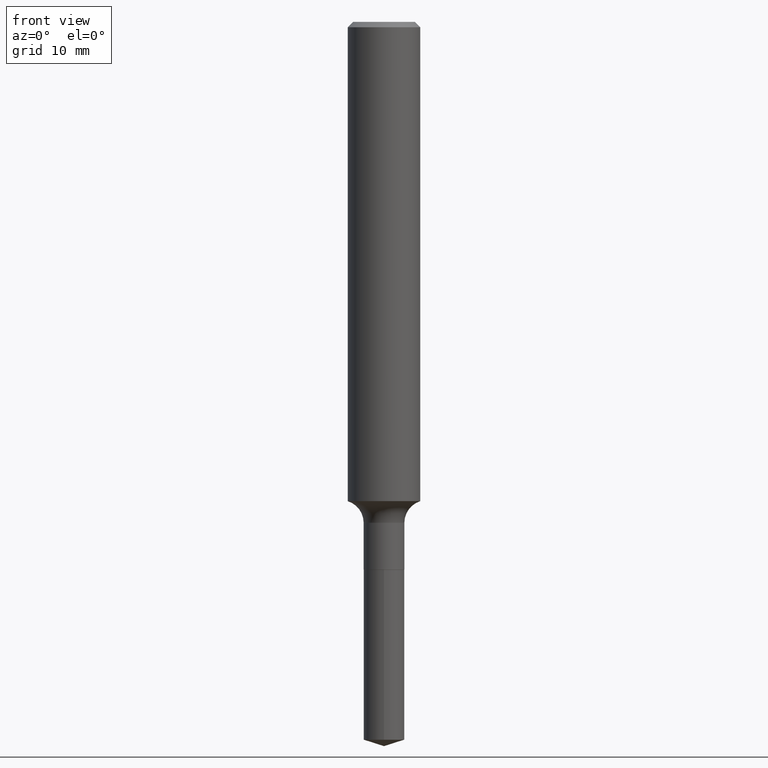
[diagram: clean part render]
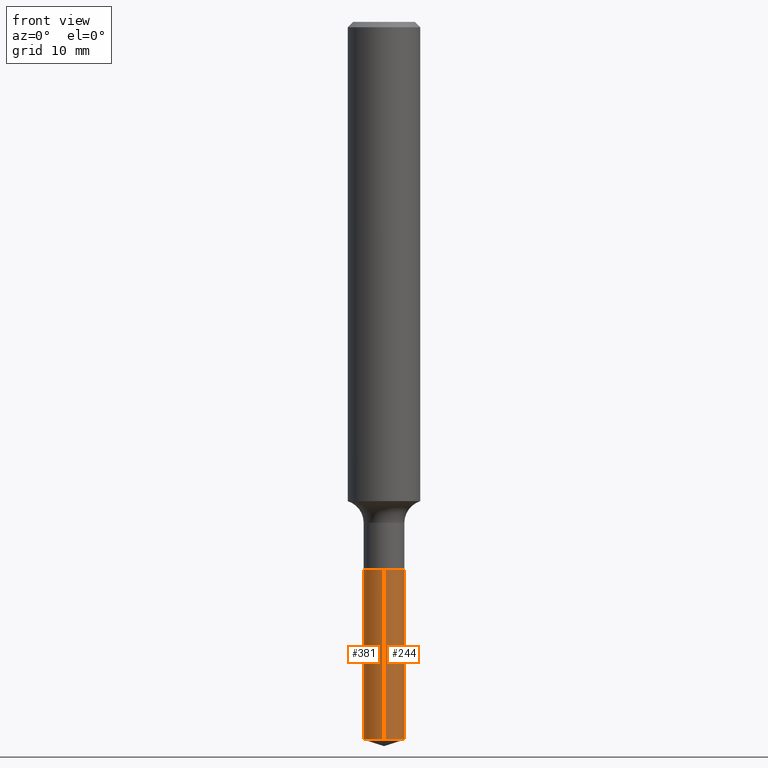
[diagram: same view with one multi-face feature highlighted, each face labeled with its STEP entity id]
A machine part, front view. The highlighted faces form ONE feature: a constant-radius fillet chain: 2 tangent blend faces with common blend radius 1.7856 mm. The faces share edges in the B-rep.
Their STEP definitions:
[1] entity #244 (Cylinder):
#3 = CARTESIAN_POINT ( 'NONE',  ( 4.623403324973620023E-29, -6.600994619216851985E-15, -1.890600000000000280 ) ) ;
#6 = DIRECTION ( 'NONE',  ( -6.982962677686265133E-15, -1.000000000000000000, 3.885985766236505386E-15 ) ) ;
#7 = VERTEX_POINT ( 'NONE', #299 ) ;
#44 = VECTOR ( 'NONE', #263, 39.37007874015748143 ) ;
#59 = EDGE_CURVE ( 'NONE', #7, #396, #333, .T. ) ;
#77 = LINE ( 'NONE', #78, #44 ) ;
#78 = CARTESIAN_POINT ( 'NONE',  ( 4.995115432393965888E-16, 0.07029999999999339555, -1.890600000000000502 ) ) ;
#79 = AXIS2_PLACEMENT_3D ( 'NONE', #343, #302, #114 ) ;
#92 = ORIENTED_EDGE ( 'NONE', *, *, #295, .F. ) ;
#95 = VERTEX_POINT ( 'NONE', #413 ) ;
#113 = CIRCLE ( 'NONE', #79, 0.07030000000000000138 ) ;
#114 = DIRECTION ( 'NONE',  ( -6.982962677686265133E-15, -1.000000000000000000, 0.000000000000000000 ) ) ;
#128 = ORIENTED_EDGE ( 'NONE', *, *, #174, .T. ) ;
#133 = CARTESIAN_POINT ( 'NONE',  ( 4.995115432394111827E-16, 0.07029999999999340943, -1.890600000000000502 ) ) ;
#157 = ORIENTED_EDGE ( 'NONE', *, *, #59, .F. ) ;
#174 = EDGE_CURVE ( 'NONE', #7, #95, #113, .T. ) ;
#198 = AXIS2_PLACEMENT_3D ( 'NONE', #279, #472, #6 ) ;
#201 = CARTESIAN_POINT ( 'NONE',  ( -4.909022762412983059E-16, -0.07030000000000659333, -1.890600000000000058 ) ) ;
#213 = EDGE_CURVE ( 'NONE', #95, #432, #77, .T. ) ;
#226 = DIRECTION ( 'NONE',  ( -6.982962677686265133E-15, -1.000000000000000000, 3.885985766236505386E-15 ) ) ;
#244 = ADVANCED_FACE ( 'NONE', ( #344 ), #414, .T. ) ;
#262 = DIRECTION ( 'NONE',  ( -2.446110727934511847E-29, 3.490562070362123134E-15, 1.000000000000000000 ) ) ;
#263 = DIRECTION ( 'NONE',  ( -2.446110727934511847E-29, 3.490562070362123134E-15, 1.000000000000000000 ) ) ;
#279 = CARTESIAN_POINT ( 'NONE',  ( 4.623403324973620023E-29, -6.600994619216851985E-15, -1.890600000000000280 ) ) ;
#295 = EDGE_CURVE ( 'NONE', #396, #432, #443, .T. ) ;
#299 = CARTESIAN_POINT ( 'NONE',  ( -4.909022762412840078E-16, -0.07030000000000866112, -2.477834495141808091 ) ) ;
#302 = DIRECTION ( 'NONE',  ( -2.446110727934512128E-29, 3.490562070362123134E-15, 1.000000000000000000 ) ) ;
#327 = CARTESIAN_POINT ( 'NONE',  ( -4.909022762412983059E-16, -0.07030000000000659333, -1.890600000000000058 ) ) ;
#333 = LINE ( 'NONE', #327, #401 ) ;
#343 = CARTESIAN_POINT ( 'NONE',  ( 6.059843923353203436E-29, -8.650773074367097084E-15, -2.477834495141808091 ) ) ;
#344 = FACE_OUTER_BOUND ( 'NONE', #349, .T. ) ;
#347 = ORIENTED_EDGE ( 'NONE', *, *, #213, .T. ) ;
#349 = EDGE_LOOP ( 'NONE', ( #128, #347, #92, #157 ) ) ;
#359 = AXIS2_PLACEMENT_3D ( 'NONE', #3, #459, #226 ) ;
#396 = VERTEX_POINT ( 'NONE', #201 ) ;
#401 = VECTOR ( 'NONE', #262, 39.37007874015748143 ) ;
#413 = CARTESIAN_POINT ( 'NONE',  ( 4.995115432394110841E-16, 0.07029999999999135551, -2.477834495141808091 ) ) ;
#414 = CYLINDRICAL_SURFACE ( 'NONE', #359, 0.07030000000000000138 ) ;
#432 = VERTEX_POINT ( 'NONE', #133 ) ;
#443 = CIRCLE ( 'NONE', #198, 0.07030000000000000138 ) ;
#459 = DIRECTION ( 'NONE',  ( -2.446110727934512128E-29, 3.490562070362123134E-15, 1.000000000000000000 ) ) ;
#472 = DIRECTION ( 'NONE',  ( -2.446110727934512128E-29, 3.490562070362123134E-15, 1.000000000000000000 ) ) ;
[2] entity #381 (Cylinder):
#7 = VERTEX_POINT ( 'NONE', #299 ) ;
#14 = DIRECTION ( 'NONE',  ( -2.446110727934512128E-29, 3.490562070362123134E-15, 1.000000000000000000 ) ) ;
#24 = EDGE_CURVE ( 'NONE', #432, #396, #296, .T. ) ;
#43 = ORIENTED_EDGE ( 'NONE', *, *, #24, .F. ) ;
#44 = VECTOR ( 'NONE', #263, 39.37007874015748143 ) ;
#59 = EDGE_CURVE ( 'NONE', #7, #396, #333, .T. ) ;
#77 = LINE ( 'NONE', #78, #44 ) ;
#78 = CARTESIAN_POINT ( 'NONE',  ( 4.995115432393965888E-16, 0.07029999999999339555, -1.890600000000000502 ) ) ;
#88 = CIRCLE ( 'NONE', #220, 0.07030000000000000138 ) ;
#95 = VERTEX_POINT ( 'NONE', #413 ) ;
#133 = CARTESIAN_POINT ( 'NONE',  ( 4.995115432394111827E-16, 0.07029999999999340943, -1.890600000000000502 ) ) ;
#163 = ORIENTED_EDGE ( 'NONE', *, *, #373, .T. ) ;
#201 = CARTESIAN_POINT ( 'NONE',  ( -4.909022762412983059E-16, -0.07030000000000659333, -1.890600000000000058 ) ) ;
#213 = EDGE_CURVE ( 'NONE', #95, #432, #77, .T. ) ;
#220 = AXIS2_PLACEMENT_3D ( 'NONE', #322, #14, #433 ) ;
#242 = DIRECTION ( 'NONE',  ( -2.446110727934512128E-29, 3.490562070362123134E-15, 1.000000000000000000 ) ) ;
#247 = CYLINDRICAL_SURFACE ( 'NONE', #475, 0.07030000000000000138 ) ;
#262 = DIRECTION ( 'NONE',  ( -2.446110727934511847E-29, 3.490562070362123134E-15, 1.000000000000000000 ) ) ;
#263 = DIRECTION ( 'NONE',  ( -2.446110727934511847E-29, 3.490562070362123134E-15, 1.000000000000000000 ) ) ;
#264 = AXIS2_PLACEMENT_3D ( 'NONE', #445, #442, #371 ) ;
#277 = DIRECTION ( 'NONE',  ( -6.982962677686265133E-15, -1.000000000000000000, 3.885985766236505386E-15 ) ) ;
#296 = CIRCLE ( 'NONE', #264, 0.07030000000000000138 ) ;
#299 = CARTESIAN_POINT ( 'NONE',  ( -4.909022762412840078E-16, -0.07030000000000866112, -2.477834495141808091 ) ) ;
#314 = FACE_OUTER_BOUND ( 'NONE', #362, .T. ) ;
#322 = CARTESIAN_POINT ( 'NONE',  ( 6.059843923353203436E-29, -8.650773074367097084E-15, -2.477834495141808091 ) ) ;
#327 = CARTESIAN_POINT ( 'NONE',  ( -4.909022762412983059E-16, -0.07030000000000659333, -1.890600000000000058 ) ) ;
#333 = LINE ( 'NONE', #327, #401 ) ;
#354 = ORIENTED_EDGE ( 'NONE', *, *, #213, .F. ) ;
#362 = EDGE_LOOP ( 'NONE', ( #354, #163, #389, #43 ) ) ;
#371 = DIRECTION ( 'NONE',  ( -6.982962677686265133E-15, -1.000000000000000000, 3.885985766236505386E-15 ) ) ;
#373 = EDGE_CURVE ( 'NONE', #95, #7, #88, .T. ) ;
#381 = ADVANCED_FACE ( 'NONE', ( #314 ), #247, .T. ) ;
#389 = ORIENTED_EDGE ( 'NONE', *, *, #59, .T. ) ;
#396 = VERTEX_POINT ( 'NONE', #201 ) ;
#401 = VECTOR ( 'NONE', #262, 39.37007874015748143 ) ;
#413 = CARTESIAN_POINT ( 'NONE',  ( 4.995115432394110841E-16, 0.07029999999999135551, -2.477834495141808091 ) ) ;
#432 = VERTEX_POINT ( 'NONE', #133 ) ;
#433 = DIRECTION ( 'NONE',  ( -6.982962677686265133E-15, -1.000000000000000000, 0.000000000000000000 ) ) ;
#442 = DIRECTION ( 'NONE',  ( -2.446110727934512128E-29, 3.490562070362123134E-15, 1.000000000000000000 ) ) ;
#445 = CARTESIAN_POINT ( 'NONE',  ( 4.623403324973620023E-29, -6.600994619216851985E-15, -1.890600000000000280 ) ) ;
#475 = AXIS2_PLACEMENT_3D ( 'NONE', #477, #242, #277 ) ;
#477 = CARTESIAN_POINT ( 'NONE',  ( 4.623403324973620023E-29, -6.600994619216851985E-15, -1.890600000000000280 ) ) ;